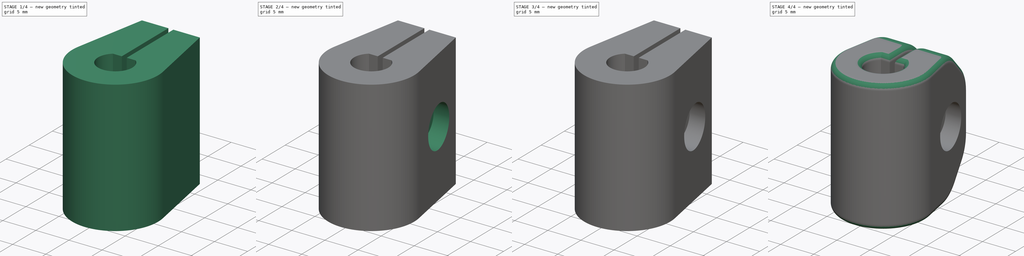
[diagram: build sequence overview — one tinted view per stage of 4, left to right]
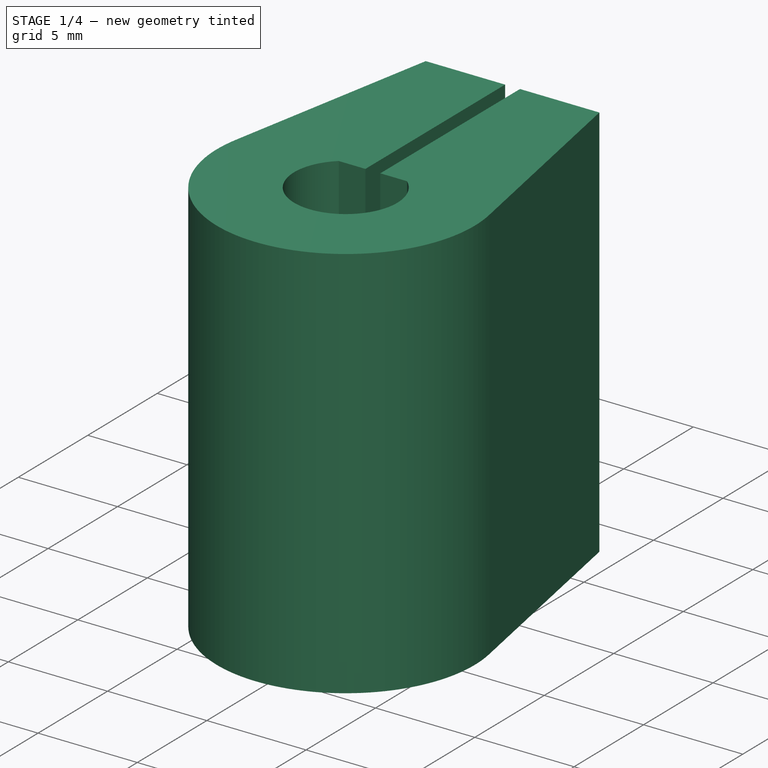
[diagram: stage 1 of 4 — iso view after this stage's code; geometry added in this stage tinted green]
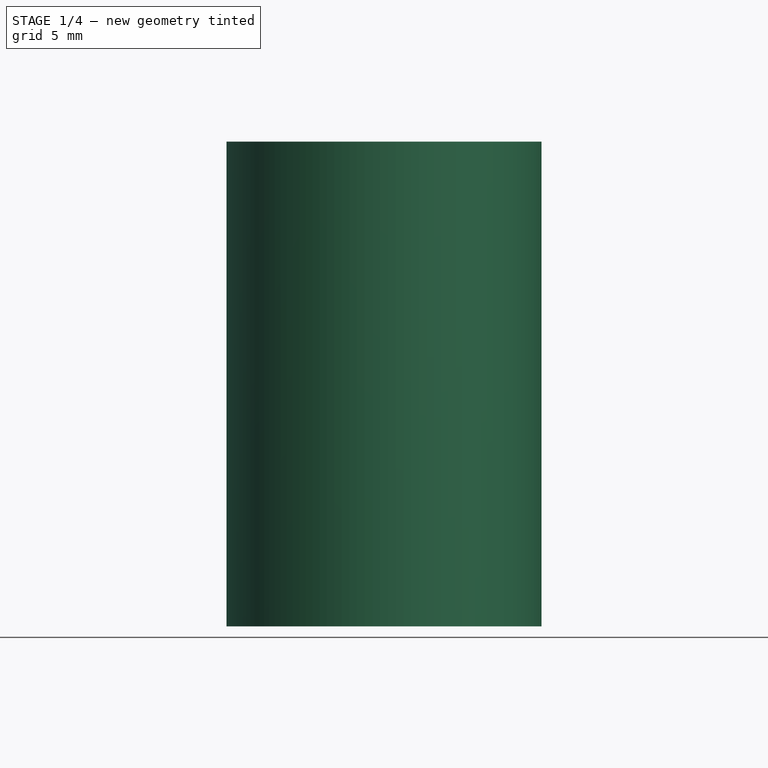
[diagram: stage 1 of 4 — front view after this stage's code; geometry added in this stage tinted green]
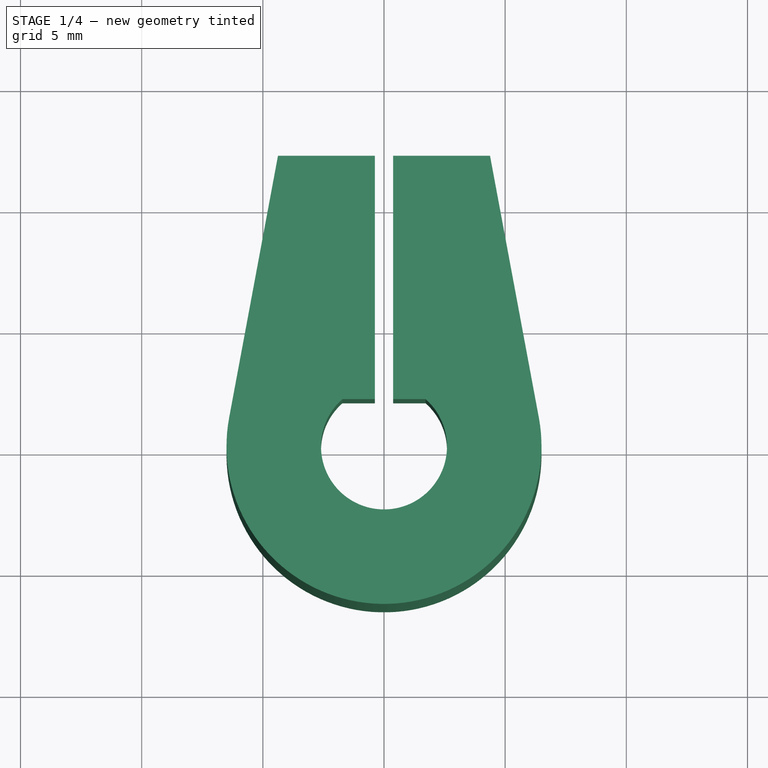
[diagram: stage 1 of 4 — top view after this stage's code; geometry added in this stage tinted green]
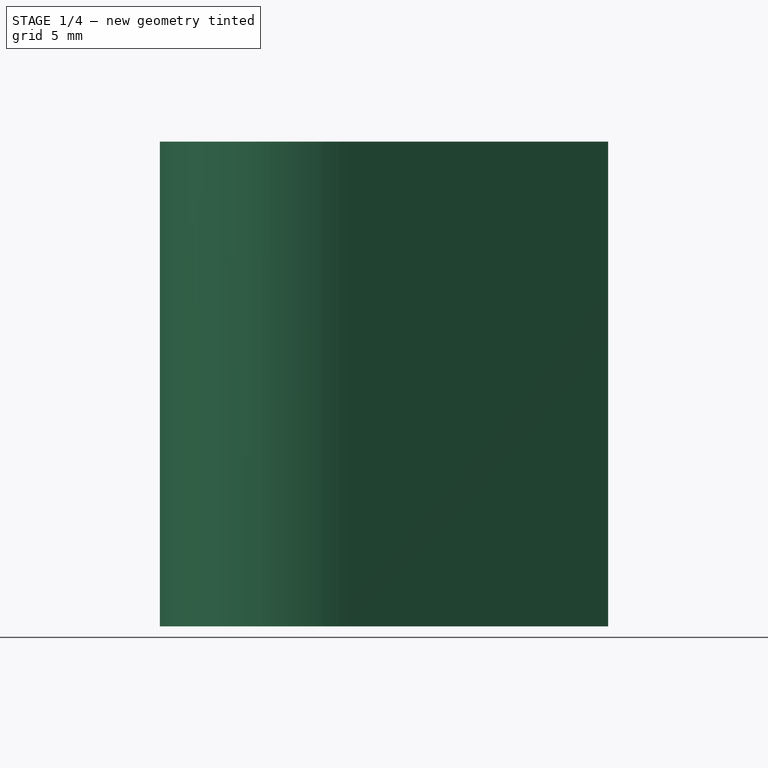
[diagram: stage 1 of 4 — right view after this stage's code; geometry added in this stage tinted green]
FCSTD DOCUMENT  (FreeCAD 0.16RUnknown)
Label: coupler
License: All rights reserved
LicenseURL: http://en.wikipedia.org/wiki/All_rights_reserved
objects: Sketcher::SketchObject×6, Part::Extrusion×3, PartDesign::Pocket×3, Part::Cut×2, Part::Fillet×2, Part::Chamfer×1
note: 20 computed .brp shape members not serialized (recipe doc carries the construction recipe); baked Part::Feature solids carry a one-line shape summary decoded from their .brp

FEATURE [Sketcher::SketchObject] Sketch
  sketch-geometry (9):
    g0: LineSegment [constr] StartX=-0.375038 StartY=12 StartZ=0 EndX=0.374962 EndY=12 EndZ=0
    g1: LineSegment StartX=-0.375038 StartY=12 StartZ=0 EndX=-0.375038 EndY=0 EndZ=0
    g2: LineSegment StartX=-0.375038 StartY=0 StartZ=0 EndX=0.374962 EndY=0 EndZ=0
    g3: LineSegment StartX=0.374962 StartY=0 StartZ=0 EndX=0.374962 EndY=12 EndZ=0
    g4: LineSegment StartX=-0.375038 StartY=12 StartZ=0 EndX=-4.37504 EndY=12 EndZ=0
    g5: LineSegment StartX=-4.37504 StartY=12 StartZ=0 EndX=-6.38992 EndY=1.19118 EndZ=0
    g6: LineSegment StartX=0.374962 StartY=12 StartZ=0 EndX=4.37496 EndY=12 EndZ=0
    g7: LineSegment StartX=4.37496 StartY=12 StartZ=0 EndX=6.38992 EndY=1.1912 EndZ=0
    g8: ArcOfCircle CenterX=0 CenterY=0 CenterZ=0 NormalX=0 NormalY=0 NormalZ=1 Radius=6.5 StartAngle=2.95729 EndAngle=6.46749
  constraints (26):
    c: Horizontal(g0)
    c: Vertical(g1)
    c: Coincident(g1,g2)
    c: Horizontal(g2)
    c: Coincident(g2,g3)
    c: Vertical(g3)
    c: PointOnObject(g2,g-1)
    c: DistanceX(g0,g0) = 0.75
    c: DistanceY(g1,g1) = 12
    c: Coincident(g0,g1)
    c: Coincident(g0,g3)
    c: Horizontal(g4)
    c: Coincident(g4,g5)
    c: Horizontal(g6)
    c: Coincident(g6,g7)
    c: Coincident(g0,g4)
    c: Coincident(g0,g6)
    c: Coincident(g5,g8)
    c: Coincident(g7,g8)
    c: Tangent(g7,g8)
    c: Tangent(g8,g5)
    c: Equal(g4,g6)
    c: Coincident(g8,g-1)
    c: Equal(g5,g7)
    c: Radius(g8) = 6.5
    c: DistanceX(g4,g4) = 4
FEATURE [Part::Extrusion] Extrude
  Base = -> Sketch
  Dir = (0,0,20)
  Solid = true
FEATURE [Sketcher::SketchObject] Sketch001
  Placement = pos=(0,0,0) rot=(1,0,0;3.14159rad)
  Support = -> Extrude [Face9]
  sketch-geometry (1):
    g0: Circle CenterX=0 CenterY=0 CenterZ=0 NormalX=0 NormalY=0 NormalZ=1 Radius=4.1
  constraints (2):
    c: Coincident(g0,g-1)
    c: Radius(g0) = 4.1
FEATURE [PartDesign::Pocket] Pocket
  Length = 10
  Sketch = -> Sketch001
  Type = 0
FEATURE [Sketcher::SketchObject] Sketch002
  Placement = pos=(0,0,20) rot=(0,0,1;0rad)
  Support = -> Pocket [Face6]
  sketch-geometry (3):
    g0: ArcOfCircle CenterX=0 CenterY=0 CenterZ=0 NormalX=0 NormalY=0 NormalZ=1 Radius=2.6 StartAngle=2.29353 EndAngle=7.13125
    g1: LineSegment StartX=-1.71974 StartY=1.95 StartZ=0 EndX=1.71974 EndY=1.95 EndZ=0
    g2: GeomPoint [constr] X=0 Y=-2.6 Z=0
  constraints (8):
    c: Horizontal(g1)
    c: Coincident(g0,g1)
    c: Coincident(g0,g1)
    c: Coincident(g0,g-1)
    c: PointOnObject(g2,g-2)
    c: PointOnObject(g2,g0)
    c: DistanceY(g2,g0) = 4.55
    c: Radius(g0) = 2.6
FEATURE [PartDesign::Pocket] Pocket001
  Length = 0
  Sketch = -> Sketch002
  Type = 3
  UpToFace = -> Pocket [Face4]
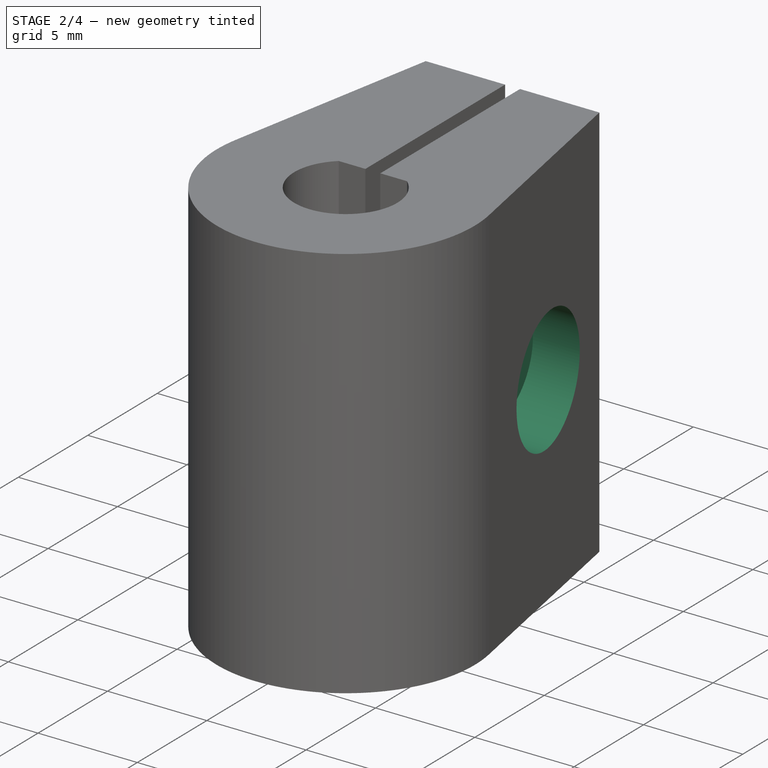
[diagram: stage 2 of 4 — iso view after this stage's code; geometry added in this stage tinted green]
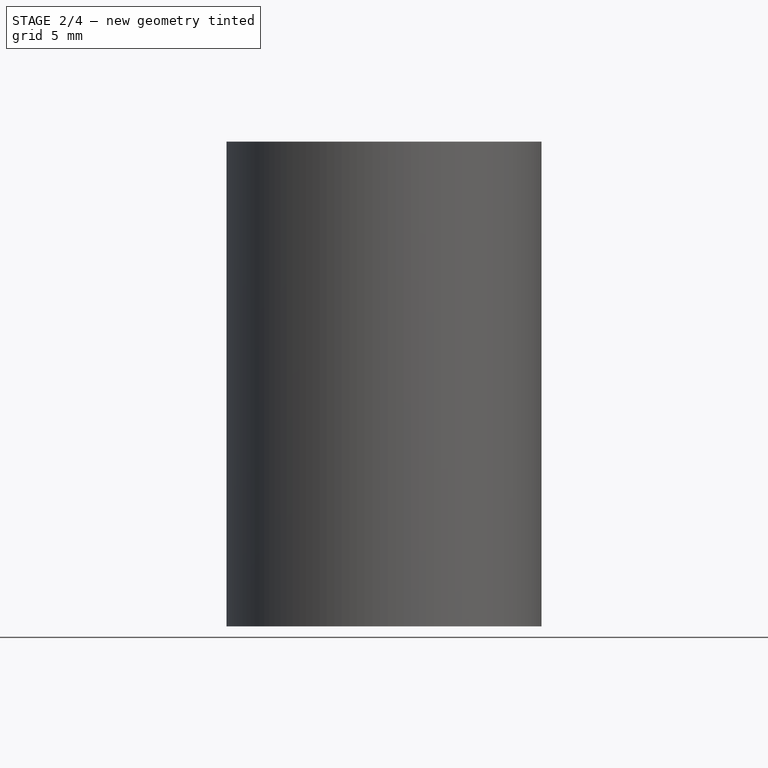
[diagram: stage 2 of 4 — front view after this stage's code; geometry added in this stage tinted green]
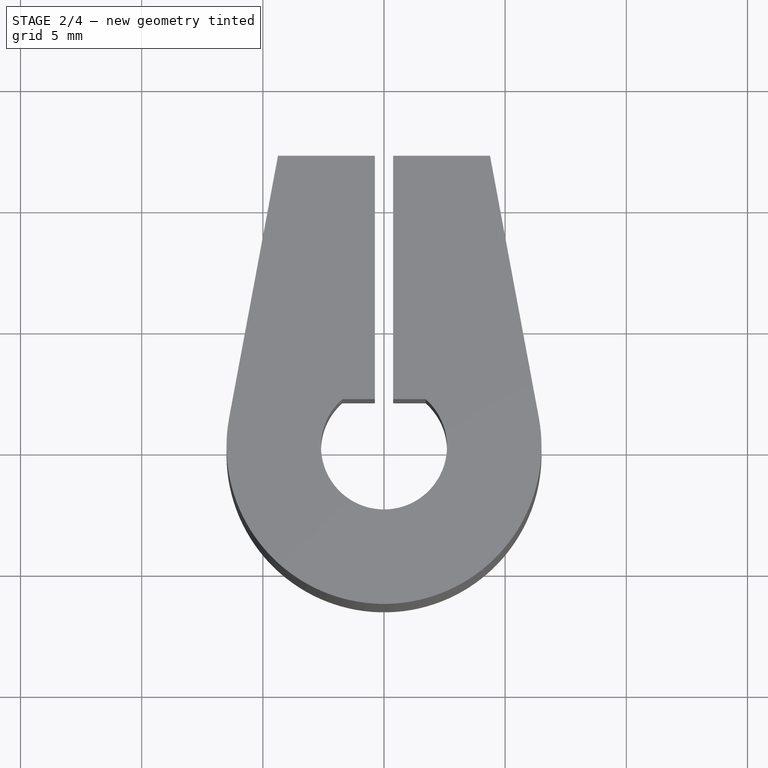
[diagram: stage 2 of 4 — top view after this stage's code; geometry added in this stage tinted green]
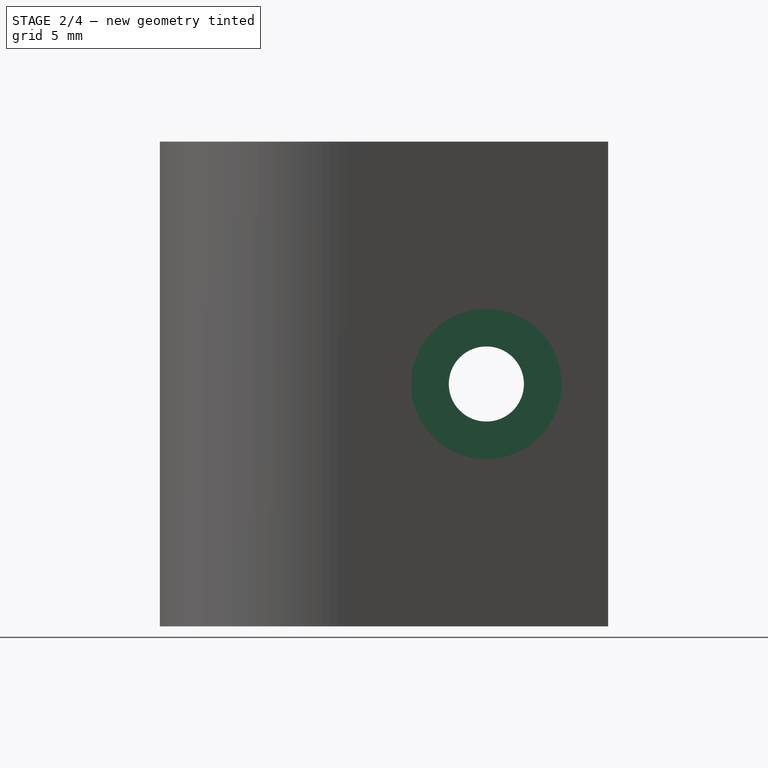
[diagram: stage 2 of 4 — right view after this stage's code; geometry added in this stage tinted green]
FEATURE [Sketcher::SketchObject] Sketch003
  ExternalGeometry = -> [Pocket001]
  Placement = pos=(0.374962,0,0) rot=(0.57735,-0.57735,-0.57735;2.0944rad)
  Support = -> Pocket001 [Face12]
  sketch-geometry (3):
    g0: LineSegment [constr] StartX=-1.95 StartY=20 StartZ=0 EndX=-6.975 EndY=10 EndZ=0
    g1: LineSegment [constr] StartX=-6.975 StartY=10 StartZ=0 EndX=-12 EndY=0 EndZ=0
    g2: Circle CenterX=-6.975 CenterY=10 CenterZ=0 NormalX=0 NormalY=0 NormalZ=1 Radius=1.55
  constraints (7):
    c: Coincident(g0,g1)
    c: Coincident(g1,g-3)
    c: Coincident(g0,g-4)
    c: Equal(g0,g1)
    c: Parallel(g0,g1)
    c: Coincident(g0,g2)
    c: Radius(g2) = 1.55
FEATURE [PartDesign::Pocket] Pocket002
  Length = 5
  Midplane = true
  Sketch = -> Sketch003
  Type = 1
FEATURE [Sketcher::SketchObject] Sketch004
  ExternalGeometry = -> [Pocket002]
  Placement = pos=(0.374962,0,0) rot=(0.57735,-0.57735,-0.57735;2.0944rad)
  Support = -> Pocket002 [Face13]
  sketch-geometry (1):
    g0: Circle CenterX=-6.975 CenterY=10 CenterZ=0 NormalX=0 NormalY=0 NormalZ=1 Radius=3.1
  constraints (2):
    c: Coincident(g0,g-3)
    c: Radius(g0) = 3.1
FEATURE [Sketcher::SketchObject] Sketch005
  ExternalGeometry = -> [Pocket002]
  Placement = pos=(-0.375038,0,0) rot=(0.57735,0.57735,0.57735;2.0944rad)
  Support = -> Pocket002 [Face1]
  sketch-geometry (7):
    g0: LineSegment StartX=9.65968 StartY=11.55 StartZ=0 EndX=6.975 EndY=13.1 EndZ=0
    g1: LineSegment StartX=6.975 StartY=13.1 StartZ=0 EndX=4.29032 EndY=11.55 EndZ=0
    g2: LineSegment StartX=4.29032 StartY=11.55 StartZ=0 EndX=4.29032 EndY=8.45 EndZ=0
    g3: LineSegment StartX=4.29032 StartY=8.45 StartZ=0 EndX=6.975 EndY=6.9 EndZ=0
    g4: LineSegment StartX=6.975 StartY=6.9 StartZ=0 EndX=9.65968 EndY=8.45 EndZ=0
    g5: LineSegment StartX=9.65968 StartY=8.45 StartZ=0 EndX=9.65968 EndY=11.55 EndZ=0
    g6: Circle [constr] CenterX=6.975 CenterY=10 CenterZ=0 NormalX=0 NormalY=0 NormalZ=1 Radius=3.1
  constraints (16):
    c: Coincident(g0,g1)
    c: Coincident(g1,g2)
    c: Coincident(g2,g3)
    c: Coincident(g3,g4)
    c: Coincident(g4,g5)
    c: Coincident(g5,g0)
    c: Equal(g0, g1-g5) x5
    c: PointOnObject(g0,g6)
    c: PointOnObject(g1,g6)
    c: PointOnObject(g2,g6)
    c: PointOnObject(g3,g6)
    c: PointOnObject(g4,g6)
    c: PointOnObject(g5,g6)
    c: Vertical(g5)
    c: Coincident(g6,g-3)
    c: Radius(g6) = 3.1
FEATURE [Part::Extrusion] Extrude001
  Base = -> Sketch004
  Dir = (10,0,0)
  Placement = pos=(2,0,0) rot=(0,0,1;0rad)
  Solid = true
FEATURE [Part::Cut] Cut
  Base = -> Pocket002
  Tool = -> Extrude001
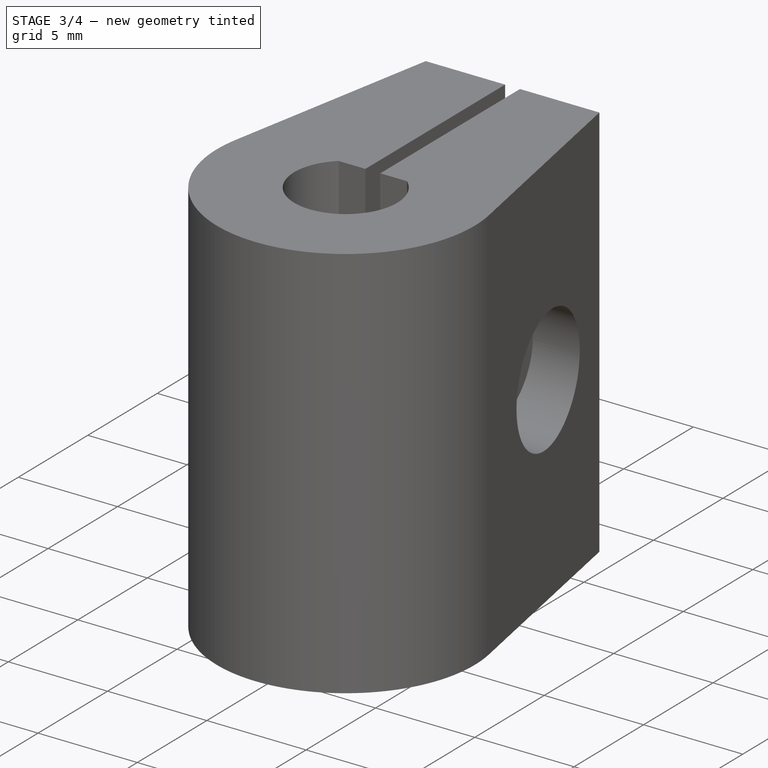
[diagram: stage 3 of 4 — iso view after this stage's code; geometry added in this stage tinted green]
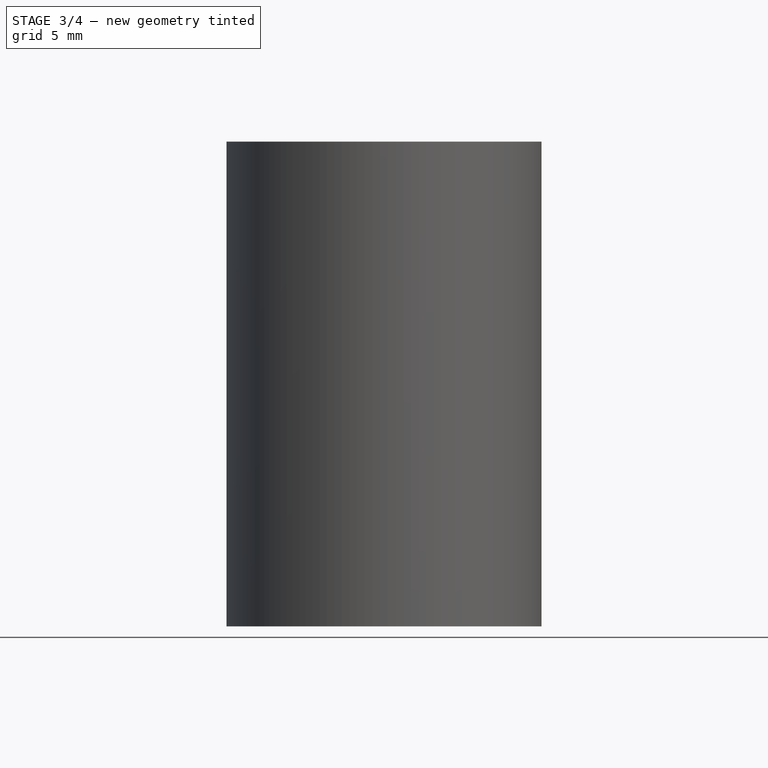
[diagram: stage 3 of 4 — front view after this stage's code; geometry added in this stage tinted green]
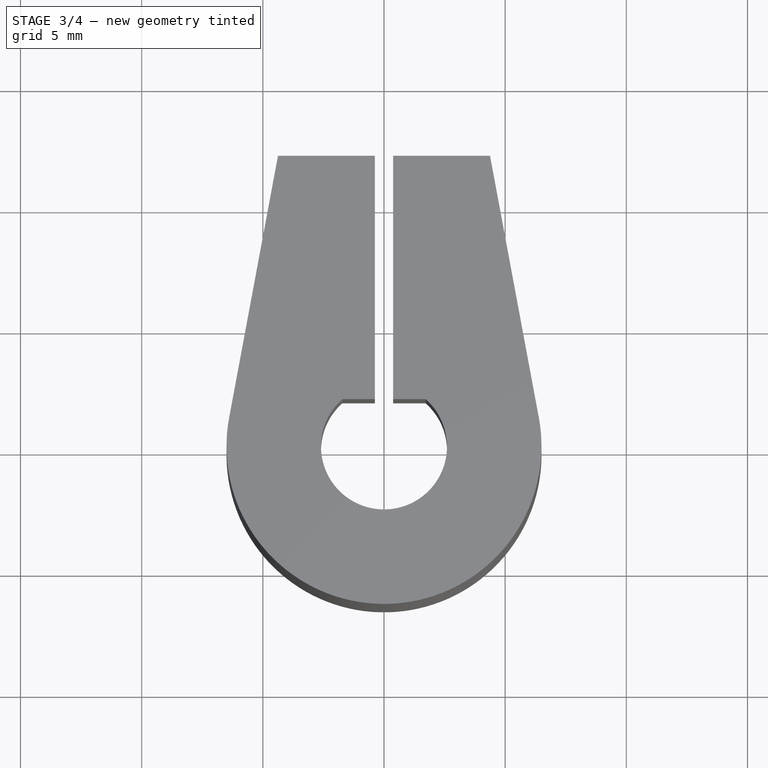
[diagram: stage 3 of 4 — top view after this stage's code; geometry added in this stage tinted green]
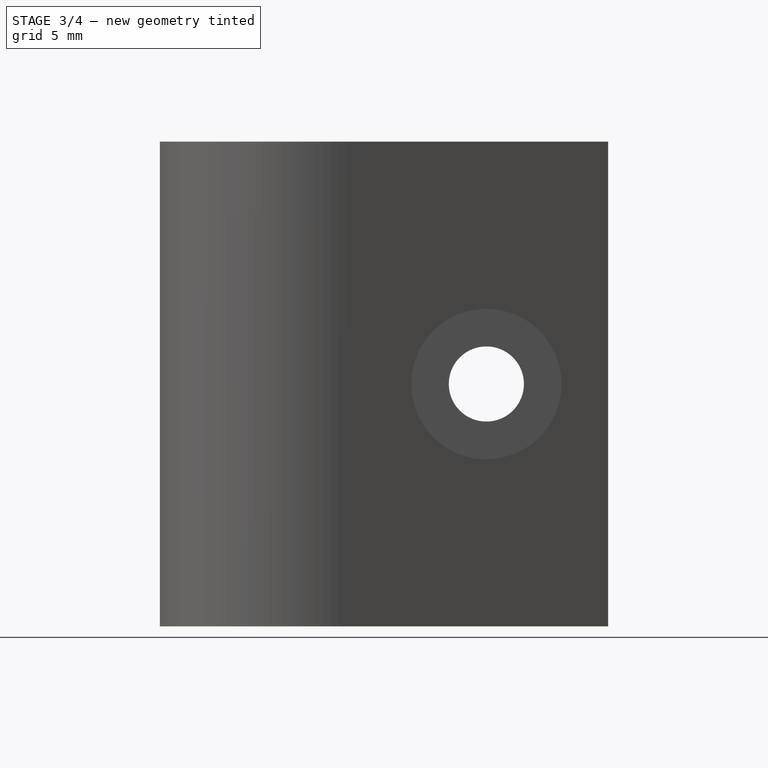
[diagram: stage 3 of 4 — right view after this stage's code; geometry added in this stage tinted green]
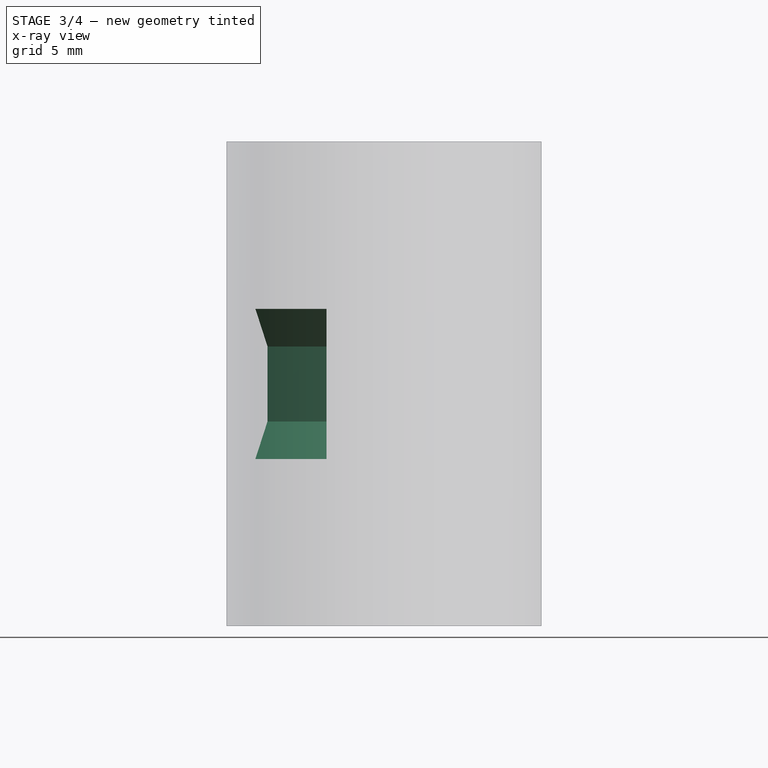
[diagram: stage 3 of 4 — x-ray composite at the front view; earlier geometry ghosted, this stage's added geometry solid]
FEATURE [Part::Extrusion] Extrude002
  Base = -> Sketch005
  Dir = (-10,0,0)
  Placement = pos=(-2,0,0) rot=(0,0,1;0rad)
  Solid = true
FEATURE [Part::Cut] Cut001
  Base = -> Cut
  Tool = -> Extrude002
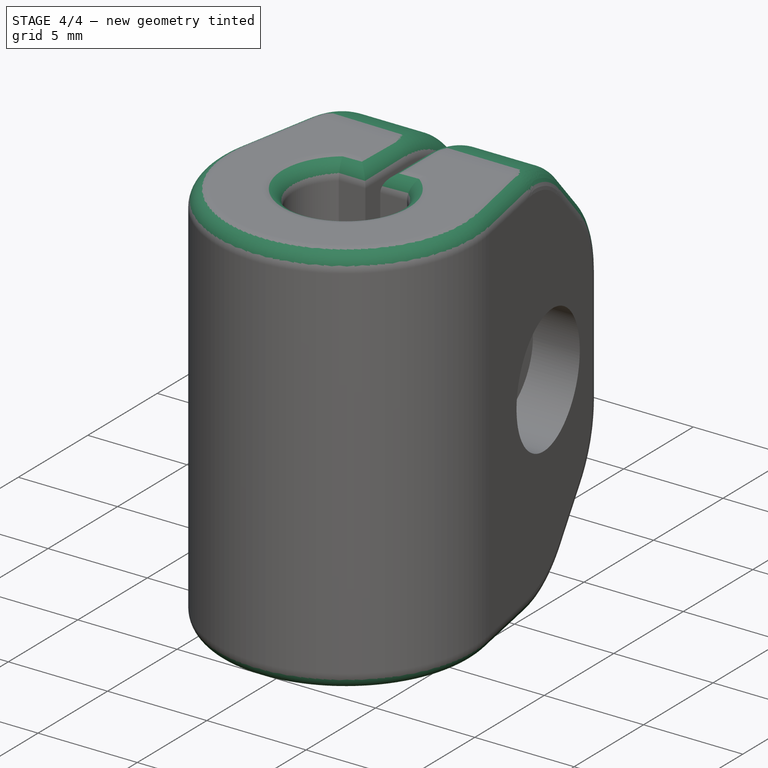
[diagram: stage 4 of 4 — iso view after this stage's code; geometry added in this stage tinted green]
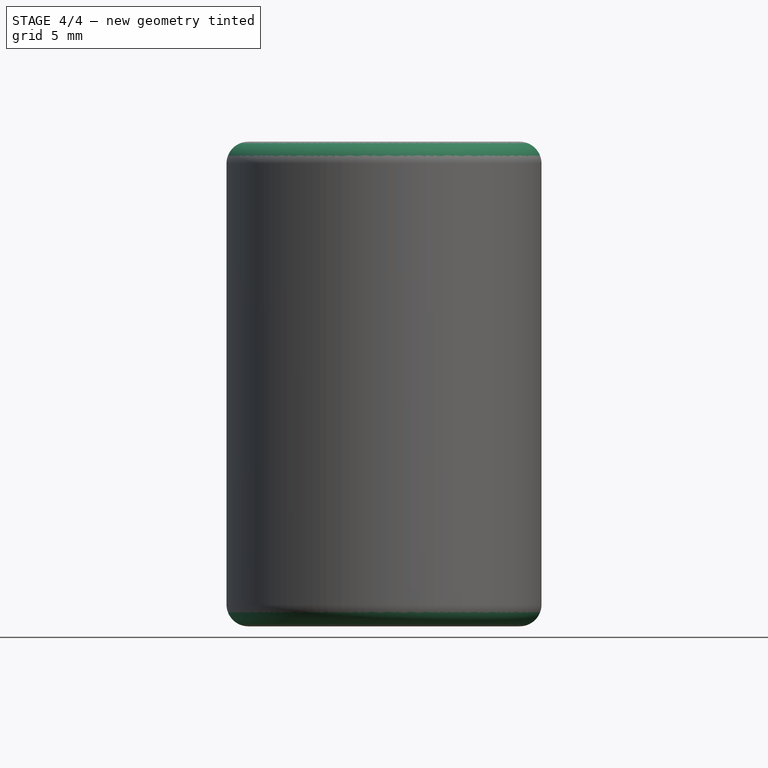
[diagram: stage 4 of 4 — front view after this stage's code; geometry added in this stage tinted green]
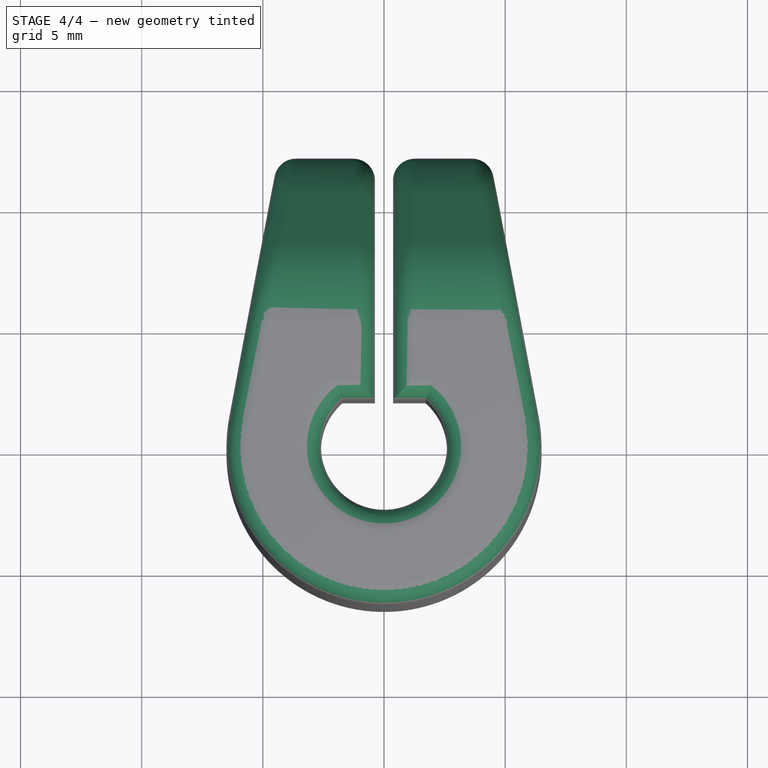
[diagram: stage 4 of 4 — top view after this stage's code; geometry added in this stage tinted green]
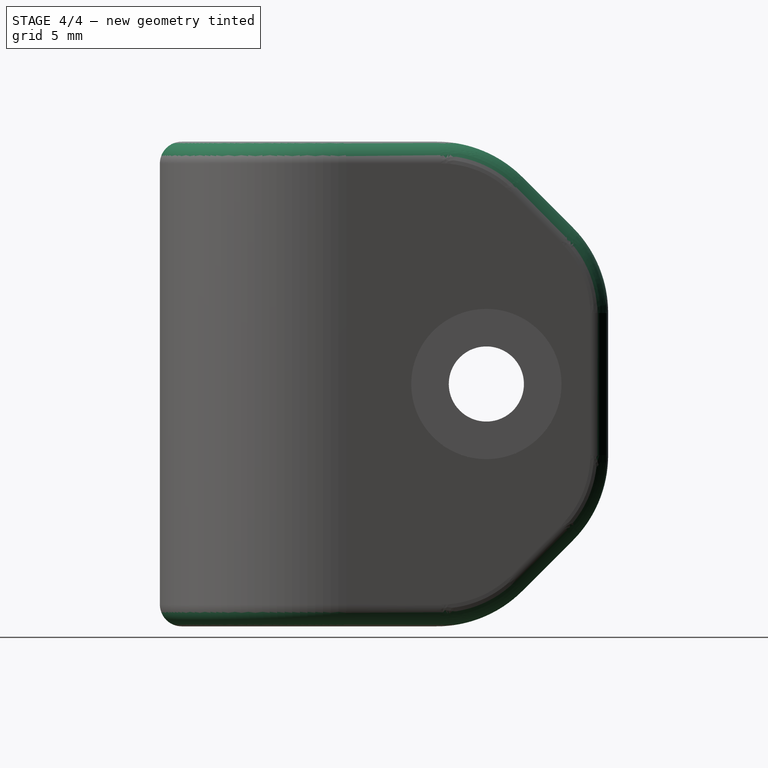
[diagram: stage 4 of 4 — right view after this stage's code; geometry added in this stage tinted green]
FEATURE [Part::Chamfer] Chamfer
  Base = -> Cut001
  Edges = 4 edges r=5: [Edge8,Edge12,Edge17,Edge23]
FEATURE [Part::Fillet] Fillet
  Base = -> Chamfer
  Edges = 8 edges r=5: [Edge11,Edge15,Edge18,Edge22,Edge29,Edge36,Edge55,Edge62]
FEATURE [Part::Fillet] Fillet001
  Base = -> Fillet
  Edges = 8 edges r=0.9: [Edge9,Edge35,Edge39,Edge41,Edge42,Edge44,Edge45,Edge46]
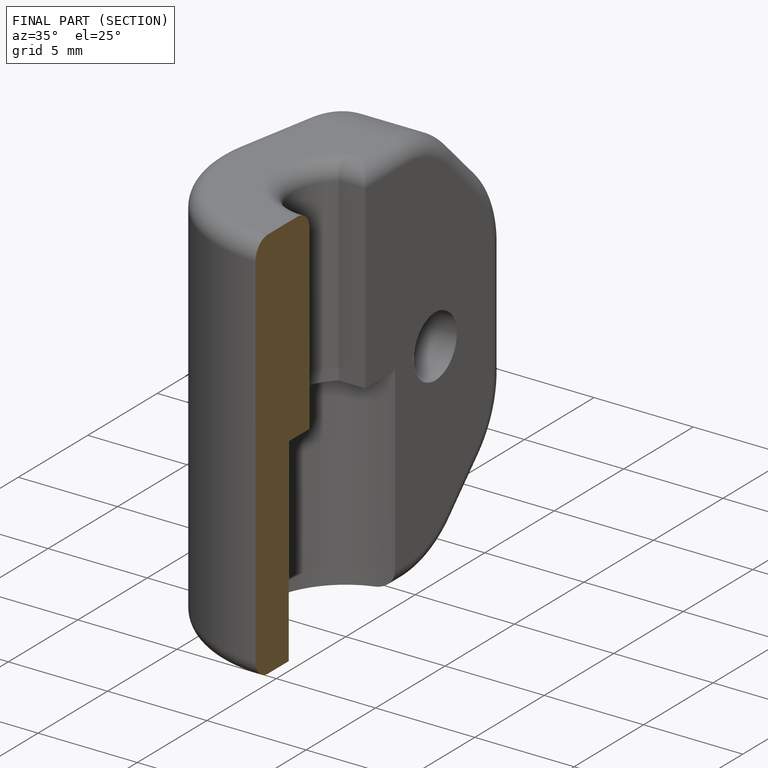
[diagram: finished part — half-section view (interior)]
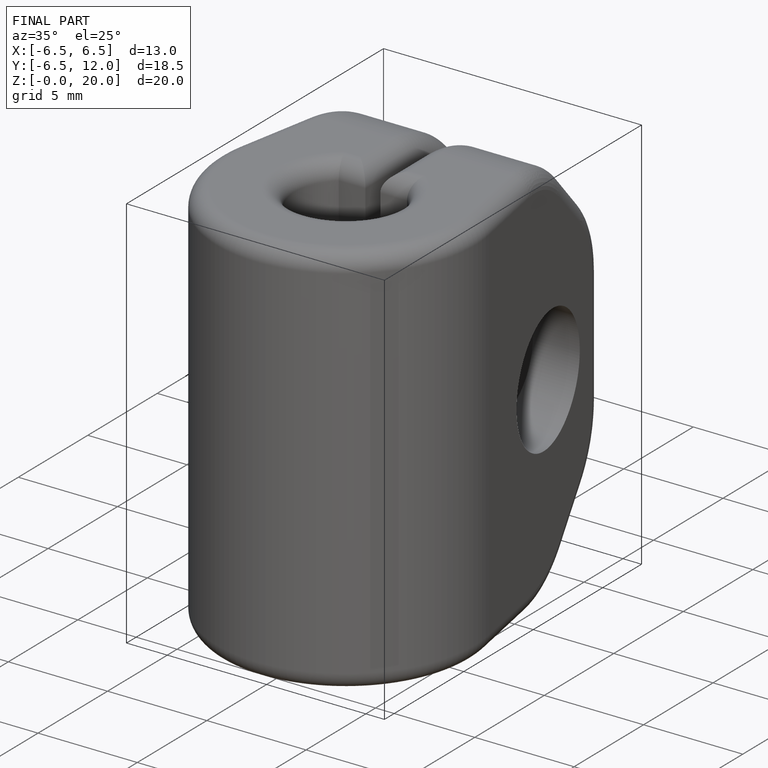
[diagram: finished part — iso view with bounding-box wireframe]
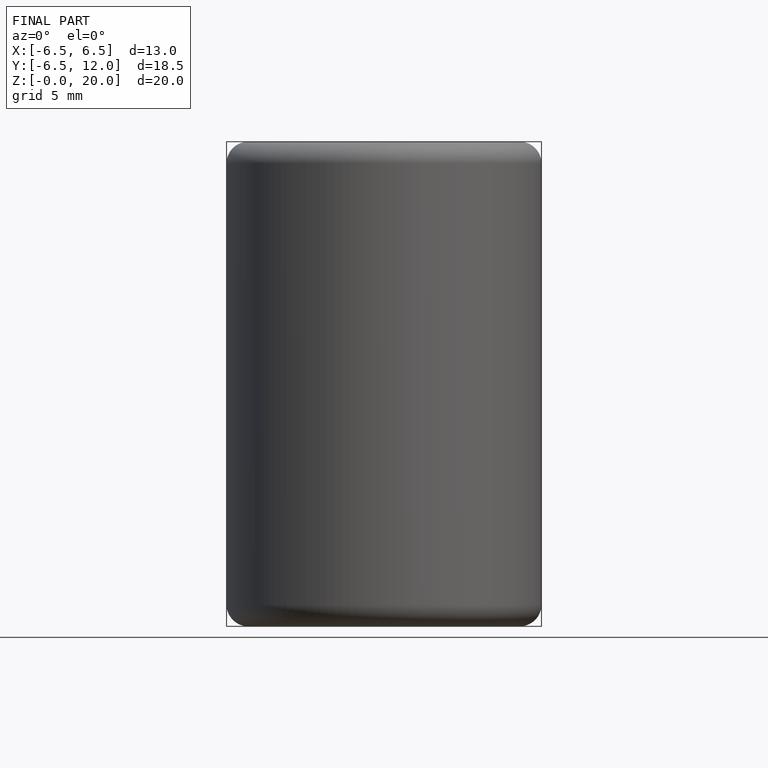
[diagram: finished part — front view with bounding-box wireframe]
